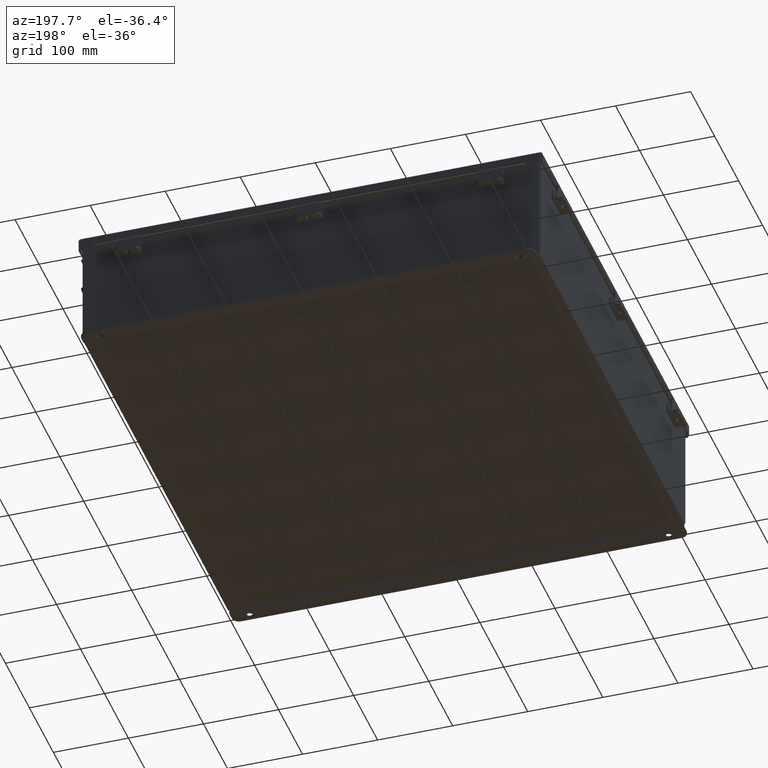
[diagram: clean part render]
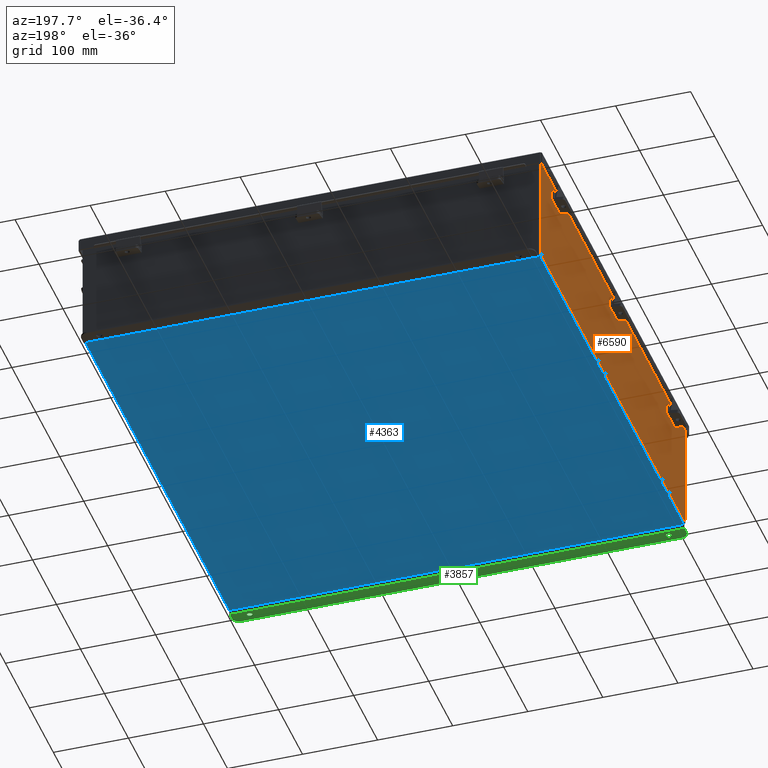
[diagram: same view with three faces highlighted in distinct colors, each labeled with its STEP entity id]
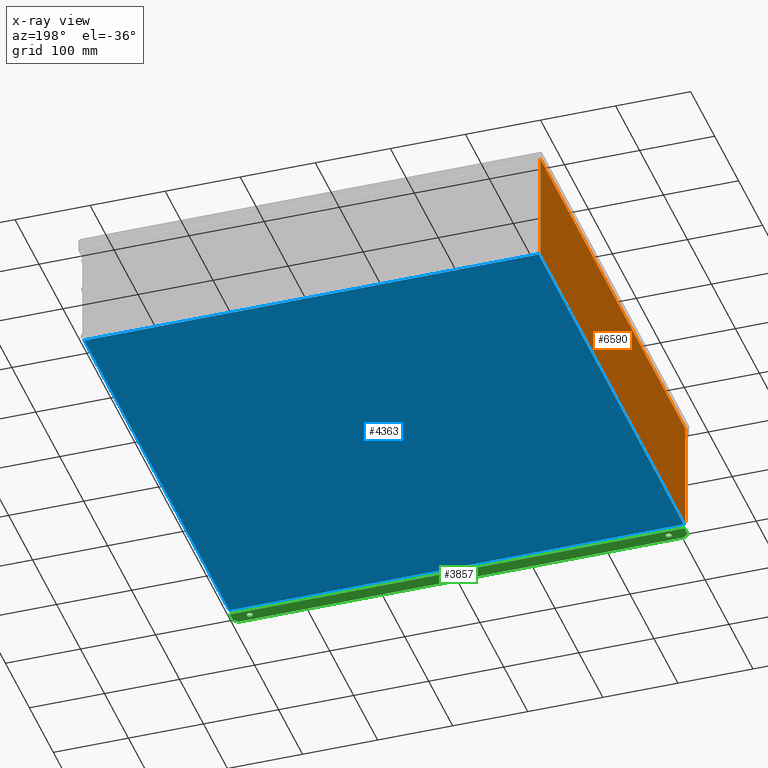
[diagram: x-ray of the same camera — body ghosted, the three highlighted faces saturated]
A machine part, auxiliary view with three faces highlighted in distinct colors.
The next image is the same camera in x-ray (body ghosted, the three faces saturated) — at least one of them is partly hidden behind the body in this view.
Their STEP definitions:

[orange] entity #6590 — the highlighted planar face has unit normal (1, 0, 0).
#242 = CARTESIAN_POINT ( 'NONE',  ( -12.00000000000000200, -11.92530000000000000, -3.614576376617028200E-014 ) ) ;
#286 = ORIENTED_EDGE ( 'NONE', *, *, #7536, .T. ) ;
#708 = CARTESIAN_POINT ( 'NONE',  ( -12.00000000000002100, -11.92530000000000000, 5.837599999999999200 ) ) ;
#1285 = DIRECTION ( 'NONE',  ( 0.0000000000000000000, 1.000000000000000000, 0.0000000000000000000 ) ) ;
#1327 = CARTESIAN_POINT ( 'NONE',  ( -12.00000000000000200, -11.92529999999999800, 0.01299999999999985900 ) ) ;
#1820 = VECTOR ( 'NONE', #5818, 39.37007874015748100 ) ;
#1987 = CARTESIAN_POINT ( 'NONE',  ( -12.00000000000000200, 11.92530000000000000, -4.060209080583511000E-014 ) ) ;
#2174 = VECTOR ( 'NONE', #4953, 39.37007874015748100 ) ;
#2288 = ORIENTED_EDGE ( 'NONE', *, *, #8139, .F. ) ;
#3102 = AXIS2_PLACEMENT_3D ( 'NONE', #8006, #3254, #8880 ) ;
#3254 = DIRECTION ( 'NONE',  ( 1.000000000000000000, 0.0000000000000000000, 3.361929640444175900E-015 ) ) ;
#3354 = VERTEX_POINT ( 'NONE', #4181 ) ;
#3928 = VERTEX_POINT ( 'NONE', #7566 ) ;
#4035 = ORIENTED_EDGE ( 'NONE', *, *, #7344, .T. ) ;
#4181 = CARTESIAN_POINT ( 'NONE',  ( -12.00000000000002100, 11.92530000000000000, 5.837599999999999200 ) ) ;
#4495 = LINE ( 'NONE', #4830, #2174 ) ;
#4597 = LINE ( 'NONE', #1987, #10045 ) ;
#4830 = CARTESIAN_POINT ( 'NONE',  ( -12.00000000000000200, 11.92530000000000000, 0.01299999999999985900 ) ) ;
#4953 = DIRECTION ( 'NONE',  ( -0.0000000000000000000, 1.000000000000000000, -0.0000000000000000000 ) ) ;
#4984 = EDGE_CURVE ( 'NONE', #3354, #3928, #4597, .T. ) ;
#5084 = VERTEX_POINT ( 'NONE', #7658 ) ;
#5532 = EDGE_LOOP ( 'NONE', ( #286, #9016, #2288, #4035 ) ) ;
#5537 = FACE_OUTER_BOUND ( 'NONE', #5532, .T. ) ;
#5818 = DIRECTION ( 'NONE',  ( -3.361929640444176300E-015, 3.735477378271307500E-016, 1.000000000000000000 ) ) ;
#6336 = VECTOR ( 'NONE', #1285, 39.37007874015748100 ) ;
#6462 = LINE ( 'NONE', #242, #1820 ) ;
#6590 = ADVANCED_FACE ( 'NONE', ( #5537 ), #7479, .F. ) ;
#7344 = EDGE_CURVE ( 'NONE', #7720, #5084, #6462, .T. ) ;
#7479 = PLANE ( 'NONE',  #3102 ) ;
#7536 = EDGE_CURVE ( 'NONE', #5084, #3354, #8398, .T. ) ;
#7566 = CARTESIAN_POINT ( 'NONE',  ( -12.00000000000000200, 11.92530000000000000, 0.01299999999999985900 ) ) ;
#7658 = CARTESIAN_POINT ( 'NONE',  ( -12.00000000000002100, -11.92529999999999800, 5.837599999999999200 ) ) ;
#7720 = VERTEX_POINT ( 'NONE', #1327 ) ;
#8006 = CARTESIAN_POINT ( 'NONE',  ( -12.00000000000000200, 0.0000000000000000000, -4.060209080583511000E-014 ) ) ;
#8139 = EDGE_CURVE ( 'NONE', #7720, #3928, #4495, .T. ) ;
#8398 = LINE ( 'NONE', #708, #6336 ) ;
#8880 = DIRECTION ( 'NONE',  ( 3.361929640444175900E-015, 0.0000000000000000000, -1.000000000000000000 ) ) ;
#9016 = ORIENTED_EDGE ( 'NONE', *, *, #4984, .T. ) ;
#9822 = DIRECTION ( 'NONE',  ( 3.361929640444176300E-015, 0.0000000000000000000, -1.000000000000000000 ) ) ;
#10045 = VECTOR ( 'NONE', #9822, 39.37007874015748100 ) ;

[blue] entity #4363 — the highlighted planar face has unit normal (0, 0, -1).
#91 = VERTEX_POINT ( 'NONE', #6006 ) ;
#1311 = VECTOR ( 'NONE', #7290, 39.37007874015748100 ) ;
#1510 = CARTESIAN_POINT ( 'NONE',  ( 11.91230000000000000, 11.92529999999999800, -0.07469999999999994700 ) ) ;
#2059 = DIRECTION ( 'NONE',  ( -1.000000000000000000, 0.0000000000000000000, -0.0000000000000000000 ) ) ;
#2445 = CARTESIAN_POINT ( 'NONE',  ( -12.00000000000000200, 11.92530000000000000, -0.07470000000000000300 ) ) ;
#2644 = EDGE_CURVE ( 'NONE', #3035, #6092, #7797, .T. ) ;
#2675 = DIRECTION ( 'NONE',  ( 0.0000000000000000000, 0.0000000000000000000, -1.000000000000000000 ) ) ;
#2780 = PLANE ( 'NONE',  #7402 ) ;
#2929 = EDGE_CURVE ( 'NONE', #91, #6092, #8128, .T. ) ;
#3035 = VERTEX_POINT ( 'NONE', #1510 ) ;
#3341 = DIRECTION ( 'NONE',  ( 1.000000000000000000, 0.0000000000000000000, 0.0000000000000000000 ) ) ;
#3356 = ORIENTED_EDGE ( 'NONE', *, *, #5730, .F. ) ;
#3442 = VECTOR ( 'NONE', #9704, 39.37007874015748100 ) ;
#3663 = CARTESIAN_POINT ( 'NONE',  ( 11.91230000000000000, 11.92530000000000000, -0.07469999999999994700 ) ) ;
#4185 = CARTESIAN_POINT ( 'NONE',  ( -11.91230000000000000, 11.92530000000000000, -0.07470000000000000300 ) ) ;
#4224 = LINE ( 'NONE', #5802, #4340 ) ;
#4340 = VECTOR ( 'NONE', #3341, 39.37007874015748100 ) ;
#4363 = ADVANCED_FACE ( 'NONE', ( #8053 ), #2780, .T. ) ;
#4391 = CARTESIAN_POINT ( 'NONE',  ( 0.0000000000000000000, 0.0000000000000000000, -0.07470000000000000300 ) ) ;
#4550 = CARTESIAN_POINT ( 'NONE',  ( -11.91230000000000000, -11.92530000000000000, -0.07469999999999994700 ) ) ;
#4704 = DIRECTION ( 'NONE',  ( -0.0000000000000000000, 1.000000000000000000, -0.0000000000000000000 ) ) ;
#5121 = ORIENTED_EDGE ( 'NONE', *, *, #2644, .F. ) ;
#5396 = VERTEX_POINT ( 'NONE', #8218 ) ;
#5730 = EDGE_CURVE ( 'NONE', #91, #5396, #4224, .T. ) ;
#5802 = CARTESIAN_POINT ( 'NONE',  ( -12.00000000000000200, -11.92530000000000000, -0.07470000000000000300 ) ) ;
#5967 = LINE ( 'NONE', #3663, #3442 ) ;
#6006 = CARTESIAN_POINT ( 'NONE',  ( -11.91230000000000000, -11.92529999999999800, -0.07469999999999994700 ) ) ;
#6060 = ORIENTED_EDGE ( 'NONE', *, *, #6775, .T. ) ;
#6092 = VERTEX_POINT ( 'NONE', #4185 ) ;
#6608 = ORIENTED_EDGE ( 'NONE', *, *, #2929, .T. ) ;
#6775 = EDGE_CURVE ( 'NONE', #3035, #5396, #5967, .T. ) ;
#7290 = DIRECTION ( 'NONE',  ( -1.000000000000000000, -0.0000000000000000000, -0.0000000000000000000 ) ) ;
#7402 = AXIS2_PLACEMENT_3D ( 'NONE', #4391, #2675, #2059 ) ;
#7797 = LINE ( 'NONE', #2445, #1311 ) ;
#8053 = FACE_OUTER_BOUND ( 'NONE', #8562, .T. ) ;
#8128 = LINE ( 'NONE', #4550, #8492 ) ;
#8218 = CARTESIAN_POINT ( 'NONE',  ( 11.91230000000000000, -11.92530000000000000, -0.07470000000000000300 ) ) ;
#8492 = VECTOR ( 'NONE', #4704, 39.37007874015748100 ) ;
#8562 = EDGE_LOOP ( 'NONE', ( #5121, #6060, #3356, #6608 ) ) ;
#9704 = DIRECTION ( 'NONE',  ( -0.0000000000000000000, -1.000000000000000000, -0.0000000000000000000 ) ) ;

[green] entity #3857 — the highlighted planar face has unit normal (0, -0, 1).
#74 = ORIENTED_EDGE ( 'NONE', *, *, #1448, .F. ) ;
#107 = CARTESIAN_POINT ( 'NONE',  ( 10.98780000000002100, 0.3628000000000008400, -3.186999999999997600 ) ) ;
#118 = CARTESIAN_POINT ( 'NONE',  ( 11.55030000000002300, 0.3628000000000008400, -3.187000000000001600 ) ) ;
#162 = VERTEX_POINT ( 'NONE', #6524 ) ;
#194 = AXIS2_PLACEMENT_3D ( 'NONE', #1190, #6488, #2044 ) ;
#324 = DIRECTION ( 'NONE',  ( 0.0000000000000000000, -3.362274453740631800E-015, -1.000000000000000000 ) ) ;
#364 = DIRECTION ( 'NONE',  ( 0.0000000000000000000, 1.000000000000000000, -3.502369222646490200E-015 ) ) ;
#431 = CARTESIAN_POINT ( 'NONE',  ( -10.98779999999997700, 0.3627999999999986800, -3.187000000000001600 ) ) ;
#432 = AXIS2_PLACEMENT_3D ( 'NONE', #9181, #1963, #4061 ) ;
#457 = DIRECTION ( 'NONE',  ( 1.000000000000000000, 2.290800226127906500E-017, -0.0000000000000000000 ) ) ;
#487 = ORIENTED_EDGE ( 'NONE', *, *, #6677, .T. ) ;
#539 = ORIENTED_EDGE ( 'NONE', *, *, #2342, .T. ) ;
#725 = AXIS2_PLACEMENT_3D ( 'NONE', #3766, #9744, #1907 ) ;
#908 = ORIENTED_EDGE ( 'NONE', *, *, #6094, .F. ) ;
#937 = PLANE ( 'NONE',  #432 ) ;
#1056 = EDGE_CURVE ( 'NONE', #8335, #7930, #2932, .T. ) ;
#1190 = CARTESIAN_POINT ( 'NONE',  ( -11.55029999999997500, 0.3627999999999964600, -3.186999999999997600 ) ) ;
#1448 = EDGE_CURVE ( 'NONE', #2855, #9267, #6450, .T. ) ;
#1476 = EDGE_CURVE ( 'NONE', #9267, #2855, #7673, .T. ) ;
#1504 = VERTEX_POINT ( 'NONE', #4147 ) ;
#1655 = VECTOR ( 'NONE', #457, 39.37007874015748100 ) ;
#1907 = DIRECTION ( 'NONE',  ( 0.0000000000000000000, 1.000000000000000000, -3.502369222646490200E-015 ) ) ;
#1943 = ORIENTED_EDGE ( 'NONE', *, *, #1056, .T. ) ;
#1963 = DIRECTION ( 'NONE',  ( 0.0000000000000000000, 3.702694488566362300E-015, 1.000000000000000000 ) ) ;
#2023 = CARTESIAN_POINT ( 'NONE',  ( -11.92529999999999500, 0.01299999999998262300, -3.186999999999996300 ) ) ;
#2044 = DIRECTION ( 'NONE',  ( 0.0000000000000000000, -1.000000000000000000, 4.370956789862820400E-015 ) ) ;
#2089 = DIRECTION ( 'NONE',  ( 0.0000000000000000000, -3.362274453740631800E-015, -1.000000000000000000 ) ) ;
#2116 = EDGE_CURVE ( 'NONE', #162, #1504, #8770, .T. ) ;
#2342 = EDGE_CURVE ( 'NONE', #9437, #162, #7925, .T. ) ;
#2388 = CIRCLE ( 'NONE', #9876, 0.1560000000000000600 ) ;
#2855 = VERTEX_POINT ( 'NONE', #10024 ) ;
#2932 = LINE ( 'NONE', #9952, #5247 ) ;
#3089 = FACE_BOUND ( 'NONE', #9022, .T. ) ;
#3314 = VERTEX_POINT ( 'NONE', #8099 ) ;
#3409 = LINE ( 'NONE', #8815, #5701 ) ;
#3532 = DIRECTION ( 'NONE',  ( 0.0000000000000000000, 1.000000000000000000, -3.502369222646490200E-015 ) ) ;
#3681 = CARTESIAN_POINT ( 'NONE',  ( 11.92530000000000500, 0.01300000000000229300, -3.187000000000000700 ) ) ;
#3766 = CARTESIAN_POINT ( 'NONE',  ( -10.98779999999997700, 0.3627999999999986800, -3.187000000000001600 ) ) ;
#3857 = ADVANCED_FACE ( 'NONE', ( #3089, #4777, #6975 ), #937, .F. ) ;
#4060 = DIRECTION ( 'NONE',  ( -4.919856193148104900E-031, -1.000000000000000000, 3.702694488566362300E-015 ) ) ;
#4061 = DIRECTION ( 'NONE',  ( -4.919856193148104900E-031, -1.000000000000000000, 3.702694488566362300E-015 ) ) ;
#4147 = CARTESIAN_POINT ( 'NONE',  ( 11.92530000000000500, 0.01300000000000229300, -3.187000000000000700 ) ) ;
#4777 = FACE_BOUND ( 'NONE', #4791, .T. ) ;
#4791 = EDGE_LOOP ( 'NONE', ( #8140, #74 ) ) ;
#4919 = CARTESIAN_POINT ( 'NONE',  ( -10.98779999999999300, 0.2067999999999986000, -3.187000000000001200 ) ) ;
#5247 = VECTOR ( 'NONE', #9642, 39.37007874015748100 ) ;
#5650 = ORIENTED_EDGE ( 'NONE', *, *, #8536, .T. ) ;
#5701 = VECTOR ( 'NONE', #8571, 39.37007874015748100 ) ;
#5808 = LINE ( 'NONE', #3681, #1655 ) ;
#5939 = CARTESIAN_POINT ( 'NONE',  ( 11.55030000000002300, 0.7378000000000011200, -3.186999999999998900 ) ) ;
#6045 = AXIS2_PLACEMENT_3D ( 'NONE', #118, #6437, #7004 ) ;
#6094 = EDGE_CURVE ( 'NONE', #3314, #9522, #7874, .T. ) ;
#6437 = DIRECTION ( 'NONE',  ( -0.0000000000000000000, -3.702694488566362300E-015, -1.000000000000000000 ) ) ;
#6450 = CIRCLE ( 'NONE', #7080, 0.1560000000000000600 ) ;
#6488 = DIRECTION ( 'NONE',  ( -0.0000000000000000000, -3.702694488566362300E-015, -1.000000000000000000 ) ) ;
#6524 = CARTESIAN_POINT ( 'NONE',  ( 11.92530000000002300, 0.3628000000000008400, -3.186999999999997600 ) ) ;
#6677 = EDGE_CURVE ( 'NONE', #7930, #7962, #9855, .T. ) ;
#6975 = FACE_OUTER_BOUND ( 'NONE', #8960, .T. ) ;
#7004 = DIRECTION ( 'NONE',  ( 0.0000000000000000000, -1.000000000000000000, 4.370956789862820400E-015 ) ) ;
#7080 = AXIS2_PLACEMENT_3D ( 'NONE', #107, #9270, #8309 ) ;
#7226 = AXIS2_PLACEMENT_3D ( 'NONE', #9379, #2089, #3532 ) ;
#7249 = CARTESIAN_POINT ( 'NONE',  ( -11.92529999999998000, 0.3627999999999964600, -3.187000000000001600 ) ) ;
#7250 = CARTESIAN_POINT ( 'NONE',  ( 11.92530000000000500, -1.092739197465705300E-014, -3.187000000000000700 ) ) ;
#7673 = CIRCLE ( 'NONE', #7226, 0.1560000000000000600 ) ;
#7846 = ORIENTED_EDGE ( 'NONE', *, *, #8750, .F. ) ;
#7874 = CIRCLE ( 'NONE', #725, 0.1560000000000000600 ) ;
#7925 = CIRCLE ( 'NONE', #6045, 0.3750000000000000600 ) ;
#7930 = VERTEX_POINT ( 'NONE', #7249 ) ;
#7934 = VECTOR ( 'NONE', #4060, 39.37007874015748100 ) ;
#7962 = VERTEX_POINT ( 'NONE', #9410 ) ;
#8099 = CARTESIAN_POINT ( 'NONE',  ( -10.98779999999997700, 0.5187999999999987100, -3.187000000000002500 ) ) ;
#8140 = ORIENTED_EDGE ( 'NONE', *, *, #1476, .F. ) ;
#8309 = DIRECTION ( 'NONE',  ( 0.0000000000000000000, 1.000000000000000000, -3.502369222646490200E-015 ) ) ;
#8335 = VERTEX_POINT ( 'NONE', #2023 ) ;
#8536 = EDGE_CURVE ( 'NONE', #7962, #9437, #3409, .T. ) ;
#8571 = DIRECTION ( 'NONE',  ( 1.000000000000000000, 4.910036603141682400E-031, 0.0000000000000000000 ) ) ;
#8750 = EDGE_CURVE ( 'NONE', #8335, #1504, #5808, .T. ) ;
#8770 = LINE ( 'NONE', #7250, #7934 ) ;
#8781 = ORIENTED_EDGE ( 'NONE', *, *, #9808, .F. ) ;
#8815 = CARTESIAN_POINT ( 'NONE',  ( -2.035385365534024800E-024, 0.7377999999999989000, -3.186999999999998900 ) ) ;
#8879 = CARTESIAN_POINT ( 'NONE',  ( 10.98780000000002100, 0.5188000000000009300, -3.186999999999998100 ) ) ;
#8960 = EDGE_LOOP ( 'NONE', ( #1943, #487, #5650, #539, #9745, #7846 ) ) ;
#9022 = EDGE_LOOP ( 'NONE', ( #908, #8781 ) ) ;
#9181 = CARTESIAN_POINT ( 'NONE',  ( 0.0000000000000000000, -1.092739197465705300E-014, -3.187000000000000700 ) ) ;
#9267 = VERTEX_POINT ( 'NONE', #8879 ) ;
#9270 = DIRECTION ( 'NONE',  ( 0.0000000000000000000, -3.362274453740631800E-015, -1.000000000000000000 ) ) ;
#9379 = CARTESIAN_POINT ( 'NONE',  ( 10.98780000000002100, 0.3628000000000008400, -3.186999999999997600 ) ) ;
#9410 = CARTESIAN_POINT ( 'NONE',  ( -11.55029999999997500, 0.7377999999999835800, -3.187000000000003400 ) ) ;
#9437 = VERTEX_POINT ( 'NONE', #5939 ) ;
#9522 = VERTEX_POINT ( 'NONE', #4919 ) ;
#9642 = DIRECTION ( 'NONE',  ( 4.919856193148104900E-031, 1.000000000000000000, -3.702694488566362300E-015 ) ) ;
#9744 = DIRECTION ( 'NONE',  ( 0.0000000000000000000, -3.362274453740631800E-015, -1.000000000000000000 ) ) ;
#9745 = ORIENTED_EDGE ( 'NONE', *, *, #2116, .T. ) ;
#9808 = EDGE_CURVE ( 'NONE', #9522, #3314, #2388, .T. ) ;
#9855 = CIRCLE ( 'NONE', #194, 0.3750000000000000600 ) ;
#9876 = AXIS2_PLACEMENT_3D ( 'NONE', #431, #324, #364 ) ;
#9952 = CARTESIAN_POINT ( 'NONE',  ( -11.92529999999999800, -2.841121913410833900E-014, -3.186999999999996300 ) ) ;
#10024 = CARTESIAN_POINT ( 'NONE',  ( 10.98780000000000500, 0.2068000000000007900, -3.186999999999996700 ) ) ;